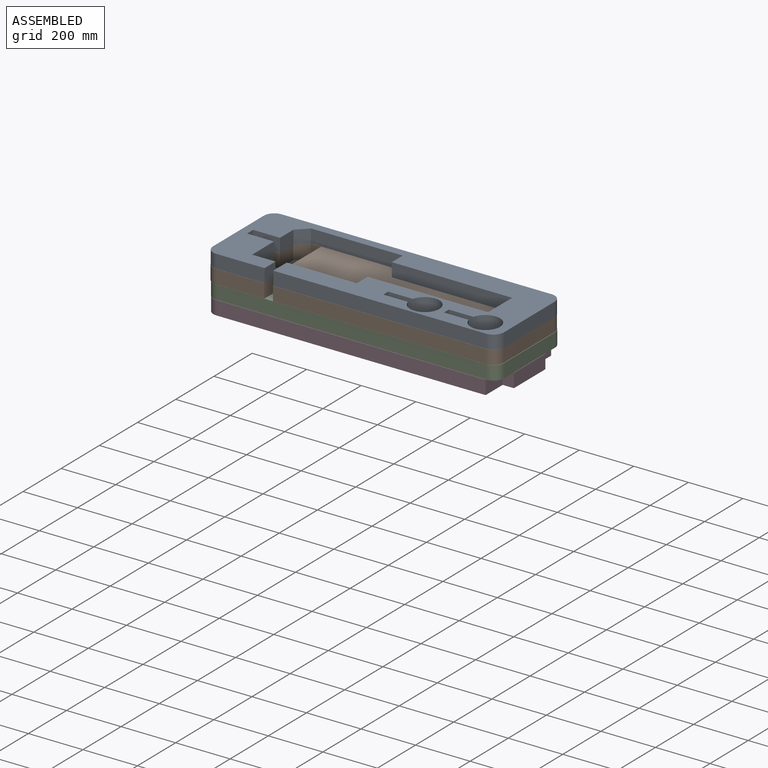
[diagram: assembled view]
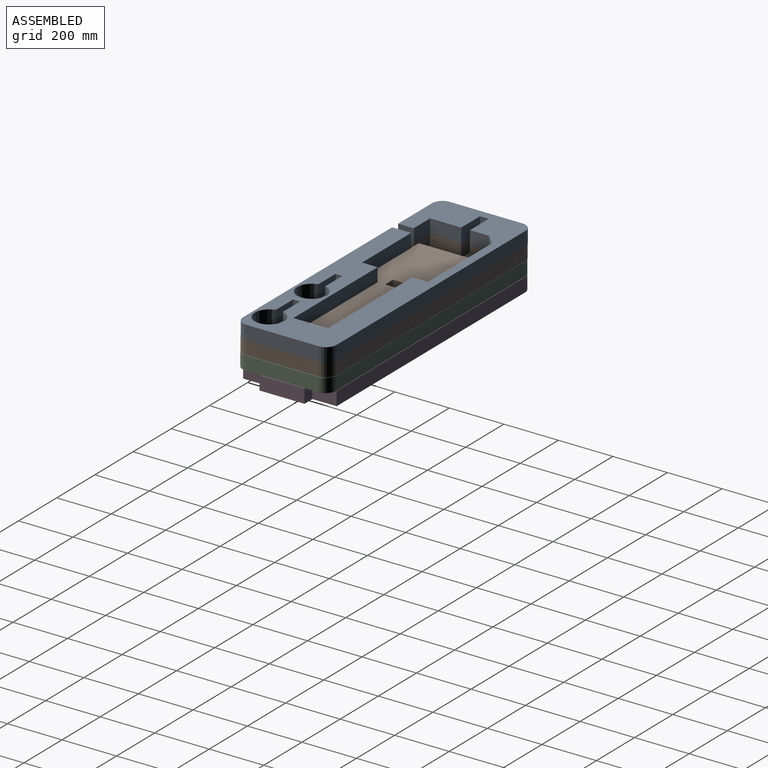
[diagram: assembled view, second angle]
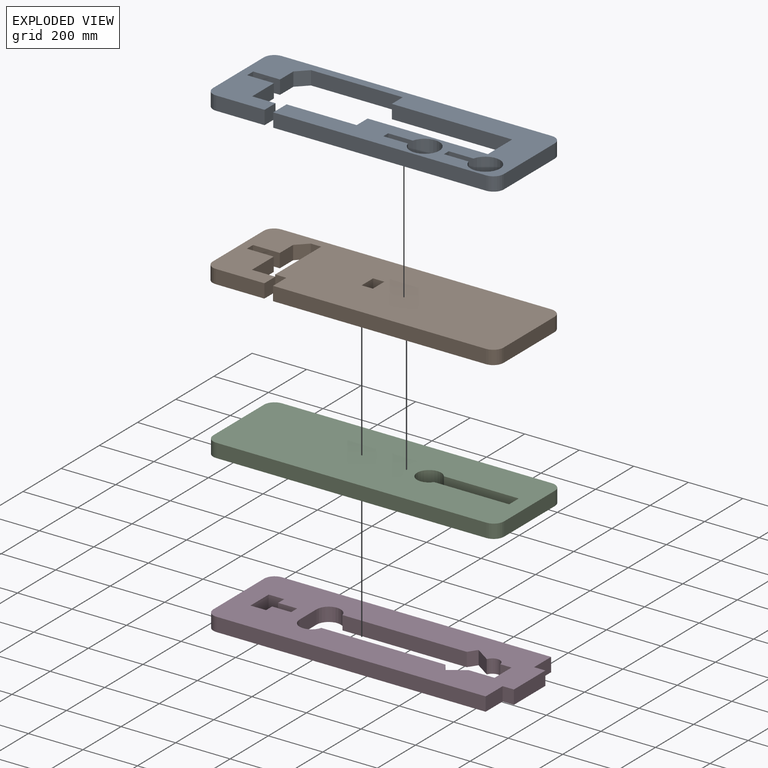
[diagram: exploded view]
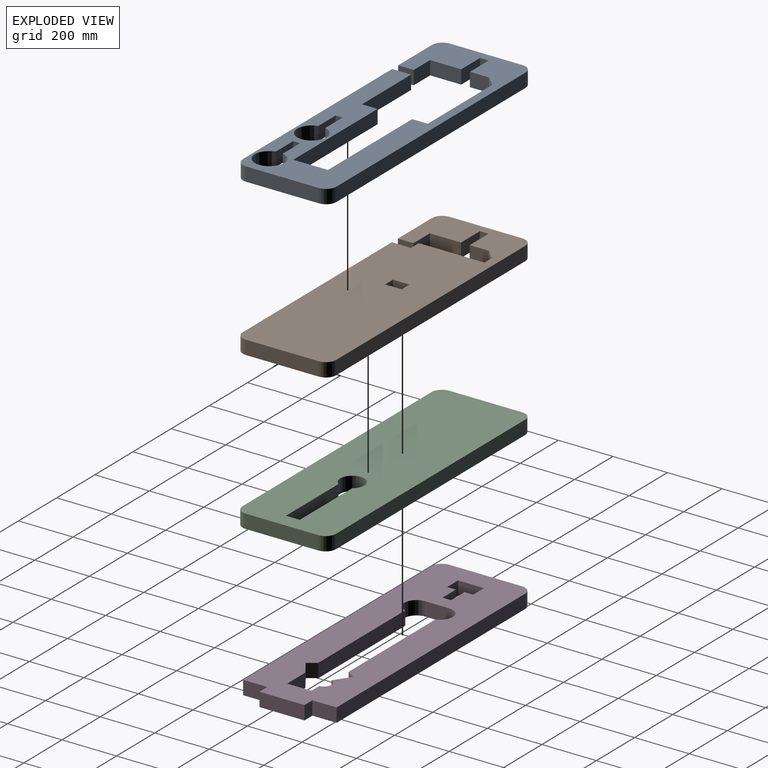
[diagram: exploded view, second angle]
ASSEMBLY  parts=4 mates=3
PART A: 35 faces, bbox 1066.8x342.9x50.8 mm
  f0: plane 177.8x50.8mm, normal (0,-1,0), area 9032.2mm2, adj f1,f6,f22,f25
  f1: plane 1066.8x342.9mm, normal (0,0,-1), area 189557.4mm2, adj f0,f2,f3,f4,f5,f7,f8,f9
  f2: plane 266.7x50.8mm, normal (1,0,0), area 13548.4mm2, adj f1,f6,f23,f26
  f3: plane 990.6x50.8mm, normal (0,1,0), area 50322.5mm2, adj f1,f6,f23,f24
  f4: plane 266.7x50.8mm, normal (-1,0,0), area 13548.4mm2, adj f1,f6,f24,f25
  f5: plane 781.05x50.8mm, normal (0,-1,0), area 39677.3mm2, adj f1,f6,f7,f26
  f6: plane 1066.8x342.9mm, normal (0,0,1), area 189557.4mm2, adj f0,f2,f3,f4,f5,f7,f8,f9
  f7: plane 69.85x50.8mm, normal (-1,0,0), area 3548.4mm2, adj f1,f5,f6,f8
  f8: plane 257.18x50.8mm, normal (0,1,0), area 13064.5mm2, adj f1,f6,f7,f9
  f9: plane 57.15x50.8mm, normal (-1,0,0), area 2903.2mm2, adj f1,f6,f8,f10
  f10: plane 441.33x50.8mm, normal (0,1,0), area 22419.3mm2, adj f1,f6,f9,f11
  f11: plane 127x50.8mm, normal (-1,0,0), area 6451.6mm2, adj f1,f6,f10,f12
  f12: plane 441.33x50.8mm, normal (0,-1,0), area 22419.3mm2, adj f1,f6,f11,f13
  f13: plane 57.15x50.8mm, normal (-1,0,0), area 2903.2mm2, adj f1,f6,f12,f14
  f14: plane 336.55x50.8mm, normal (0,-1,0), area 17096.7mm2, adj f1,f6,f13,f15
  f15: plane 50.8x38.16mm, normal (0.71,-0.71,0), area 2739.4mm2, adj f1,f6,f14,f16
  f16: plane 69.79x50.8mm, normal (1,0,0), area 3545.2mm2, adj f1,f6,f15,f17
  f17: plane 98.43x50.8mm, normal (0,-1,0), area 5000mm2, adj f1,f6,f16,f18
  f18: plane 50.8x31.75mm, normal (1,0,0), area 1612.9mm2, adj f1,f6,f17,f19
  f19: plane 98.43x50.8mm, normal (0,1,0), area 5000mm2, adj f1,f6,f18,f20
  f20: plane 114.3x50.8mm, normal (1,0,0), area 5806.4mm2, adj f1,f6,f19,f21
  f21: plane 85.73x50.8mm, normal (0,1,0), area 4354.8mm2, adj f1,f6,f20,f22
  f22: plane 57.15x50.8mm, normal (1,0,0), area 2903.2mm2, adj f0,f1,f6,f21
  f23: cylinder r=38.1mm len=50.8mm, axis (0,0,-1), area 3040.2mm2, adj f1,f2,f3,f6
  f24: cylinder r=38.1mm len=50.8mm, axis (0,0,1), area 3040.2mm2, adj f1,f3,f4,f6
  f25: cylinder r=38.1mm len=50.8mm, axis (0,0,-1), area 3040.2mm2, adj f0,f1,f4,f6
  f26: cylinder r=38.1mm len=50.8mm, axis (0,0,1), area 3040.2mm2, adj f1,f2,f5,f6
  f27: plane 90.42x50.8mm, normal (0,1,0), area 4593.1mm2, adj f1,f6,f28,f30
  f28: cylinder r=53.98mm len=107.95mm, axis (0,0,1), area 15925.5mm2, adj f1,f6,f27,f29
  f29: plane 90.42x50.8mm, normal (0,-1,0), area 4593.1mm2, adj f1,f6,f28,f30
  f30: plane 50.8x25.4mm, normal (1,0,0), area 1290.3mm2, adj f1,f6,f27,f29
  f31: plane 90.42x50.8mm, normal (0,1,0), area 4593.1mm2, adj f1,f6,f32,f34
  f32: cylinder r=53.98mm len=107.95mm, axis (0,0,1), area 15925.5mm2, adj f1,f6,f31,f33
  f33: plane 90.42x50.8mm, normal (0,-1,0), area 4593.1mm2, adj f1,f6,f32,f34
  f34: plane 50.8x25.4mm, normal (1,0,0), area 1290.3mm2, adj f1,f6,f31,f33
PART B: 27 faces, bbox 1066.8x342.9x50.8 mm
  f0: plane 177.8x50.8mm, normal (0,-1,0), area 9032.2mm2, adj f1,f6,f22,f25
  f1: plane 1066.8x342.9mm, normal (0,0,-1), area 337978.2mm2, adj f0,f2,f3,f4,f5,f7,f8,f9
  f2: plane 266.7x50.8mm, normal (1,0,0), area 13548.4mm2, adj f1,f6,f23,f26
  f3: plane 990.6x50.8mm, normal (0,1,0), area 50322.5mm2, adj f1,f6,f23,f24
  f4: plane 266.7x50.8mm, normal (-1,0,0), area 13548.4mm2, adj f1,f6,f24,f25
  f5: plane 781.05x50.8mm, normal (0,-1,0), area 39677.3mm2, adj f1,f6,f11,f26
  f6: plane 1066.8x342.9mm, normal (0,0,1), area 337978.2mm2, adj f0,f2,f3,f4,f5,f7,f8,f9
  f7: plane 60.33x50.8mm, normal (-1,0,0), area 3064.5mm2, adj f1,f6,f8,f10
  f8: plane 50.8x41.28mm, normal (0,-1,0), area 2096.8mm2, adj f1,f6,f7,f9
  f9: plane 60.33x50.8mm, normal (1,0,0), area 3064.5mm2, adj f1,f6,f8,f10
  f10: plane 50.8x41.28mm, normal (0,1,0), area 2096.8mm2, adj f1,f6,f7,f9
  f11: plane 69.85x50.8mm, normal (-1,0,0), area 3548.4mm2, adj f1,f5,f6,f12
  f12: plane 50.8x41.28mm, normal (0,-1,0), area 2096.8mm2, adj f1,f6,f11,f13
  f13: plane 241.3x50.8mm, normal (-1,0,0), area 12258mm2, adj f1,f6,f12,f14
  f14: plane 50.8x38.1mm, normal (0,-1,0), area 1935.5mm2, adj f1,f6,f13,f15
  f15: plane 50.8x38.16mm, normal (0.71,-0.71,0), area 2739.4mm2, adj f1,f6,f14,f16
  f16: plane 69.79x50.8mm, normal (1,0,0), area 3545.2mm2, adj f1,f6,f15,f17
  f17: plane 98.43x50.8mm, normal (0,-1,0), area 5000mm2, adj f1,f6,f16,f18
  f18: plane 50.8x31.75mm, normal (1,0,0), area 1612.9mm2, adj f1,f6,f17,f19
  f19: plane 98.43x50.8mm, normal (0,1,0), area 5000mm2, adj f1,f6,f18,f20
  f20: plane 114.3x50.8mm, normal (1,0,0), area 5806.4mm2, adj f1,f6,f19,f21
  f21: plane 85.73x50.8mm, normal (0,1,0), area 4354.8mm2, adj f1,f6,f20,f22
  f22: plane 57.15x50.8mm, normal (1,0,0), area 2903.2mm2, adj f0,f1,f6,f21
  f23: cylinder r=38.1mm len=50.8mm, axis (0,0,-1), area 3040.2mm2, adj f1,f2,f3,f6
  f24: cylinder r=38.1mm len=50.8mm, axis (0,0,1), area 3040.2mm2, adj f1,f3,f4,f6
  f25: cylinder r=38.1mm len=50.8mm, axis (0,0,-1), area 3040.2mm2, adj f0,f1,f4,f6
  f26: cylinder r=38.1mm len=50.8mm, axis (0,0,1), area 3040.2mm2, adj f1,f2,f5,f6
PART C: 14 faces, bbox 1066.8x342.9x50.8 mm
  f0: plane 266.7x50.8mm, normal (1,0,0), area 13548.4mm2, adj f4,f5,f6,f9
  f1: plane 990.6x50.8mm, normal (0,1,0), area 50322.5mm2, adj f4,f5,f6,f7
  f2: plane 266.7x50.8mm, normal (-1,0,0), area 13548.4mm2, adj f4,f5,f7,f8
  f3: plane 990.6x50.8mm, normal (0,-1,0), area 50322.5mm2, adj f4,f5,f8,f9
  f4: plane 1066.8x342.9mm, normal (0,0,1), area 344674.4mm2, adj f0,f1,f2,f3,f6,f7,f8,f9
  f5: plane 1066.8x342.9mm, normal (0,0,-1), area 344674.4mm2, adj f0,f1,f2,f3,f6,f7,f8,f9
  f6: cylinder r=38.1mm len=50.8mm, axis (0,0,-1), area 3040.2mm2, adj f0,f1,f4,f5
  f7: cylinder r=38.1mm len=50.8mm, axis (0,0,1), area 3040.2mm2, adj f1,f2,f4,f5
  f8: cylinder r=38.1mm len=50.8mm, axis (0,0,-1), area 3040.2mm2, adj f2,f3,f4,f5
  f9: cylinder r=38.1mm len=50.8mm, axis (0,0,1), area 3040.2mm2, adj f0,f3,f4,f5
  f10: cylinder r=44.45mm len=88.9mm, axis (0,0,1), area 11440.9mm2, adj f4,f5,f11,f13
  f11: plane 274.67x50.8mm, normal (0,1,0), area 13953.3mm2, adj f4,f5,f10,f12
  f12: plane 50.8x50.8mm, normal (-1,0,0), area 2580.6mm2, adj f4,f5,f11,f13
  f13: plane 274.67x50.8mm, normal (0,-1,0), area 13953.3mm2, adj f4,f5,f10,f12
PART D: 33 faces, bbox 1066.8x342.9x50.8 mm
  f0: plane 165.1x50.8mm, normal (1,0,0), area 8387.1mm2, adj f3,f4,f9,f10
  f1: plane 987.43x50.8mm, normal (0,1,0), area 50161.2mm2, adj f3,f4,f6,f8
  f2: plane 987.43x50.8mm, normal (0,-1,0), area 50161.2mm2, adj f3,f4,f7,f11
  f3: plane 1066.8x342.9mm, normal (0,0,1), area 265213.1mm2, adj f0,f1,f2,f5,f6,f7,f8,f9
  f4: plane 1066.8x342.9mm, normal (0,0,-1), area 265213.1mm2, adj f0,f1,f2,f5,f6,f7,f8,f9
  f5: plane 266.7x50.8mm, normal (-1,0,0), area 13548.4mm2, adj f3,f4,f6,f7
  f6: cylinder r=38.1mm len=50.8mm, axis (0,0,1), area 3040.2mm2, adj f1,f3,f4,f5
  f7: cylinder r=38.1mm len=50.8mm, axis (0,0,-1), area 3040.2mm2, adj f2,f3,f4,f5
  f8: plane 88.9x50.8mm, normal (1,0,0), area 4516.1mm2, adj f1,f3,f4,f9
  f9: plane 50.8x41.28mm, normal (0,1,0), area 2096.8mm2, adj f0,f3,f4,f8
  f10: plane 50.8x41.28mm, normal (0,-1,0), area 2096.8mm2, adj f0,f3,f4,f11
  f11: plane 88.9x50.8mm, normal (1,0,0), area 4516.1mm2, adj f2,f3,f4,f10
  f12: cylinder r=44.45mm len=87.49mm, axis (0,0,1), area 6523.4mm2, adj f3,f4,f13,f24
  f13: plane 88.9x50.8mm, normal (1,0,0), area 4516.2mm2, adj f3,f4,f12,f14
  f14: cylinder r=44.45mm len=87.49mm, axis (0,0,1), area 6523.4mm2, adj f3,f4,f13,f15
  f15: plane 455.64x50.8mm, normal (0,1,0), area 23146.7mm2, adj f3,f4,f14,f16
  f16: plane 50.8x31.46mm, normal (0.83,0.56,0), area 1935.5mm2, adj f3,f4,f15,f17
  f17: plane 57.68x50.8mm, normal (-0.56,0.83,0), area 3548.4mm2, adj f3,f4,f16,f18
  f18: plane 95.25x50.8mm, normal (0,1,0), area 4838.7mm2, adj f3,f4,f17,f19
  f19: plane 88.9x50.8mm, normal (-1,0,0), area 4516.1mm2, adj f3,f4,f18,f20
  f20: plane 50.8x41.28mm, normal (0,-1,0), area 2096.8mm2, adj f3,f4,f19,f21
  f21: cylinder r=27.73mm len=53.98mm, axis (0,0,1), area 3858.7mm2, adj f3,f4,f20,f22
  f22: plane 57.68x50.8mm, normal (-0.56,-0.83,0), area 3548.4mm2, adj f3,f4,f21,f23
  f23: plane 50.8x31.46mm, normal (0.83,-0.56,0), area 1935.5mm2, adj f3,f4,f22,f24
  f24: plane 455.64x50.8mm, normal (0,-1,0), area 23146.7mm2, adj f3,f4,f12,f23
  f25: plane 50.8x31.75mm, normal (-1,0,0), area 1612.9mm2, adj f3,f4,f26,f32
  f26: plane 57.15x50.8mm, normal (0,-1,0), area 2903.2mm2, adj f3,f4,f25,f27
  f27: plane 95.25x50.8mm, normal (1,0,0), area 4838.7mm2, adj f3,f4,f26,f28
  f28: plane 57.15x50.8mm, normal (0,1,0), area 2903.2mm2, adj f3,f4,f27,f29
  f29: plane 50.8x31.75mm, normal (-1,0,0), area 1612.9mm2, adj f3,f4,f28,f30
  f30: plane 69.85x50.8mm, normal (0,1,0), area 3548.4mm2, adj f3,f4,f29,f31
  f31: plane 50.8x31.75mm, normal (-1,0,0), area 1612.9mm2, adj f3,f4,f30,f32
  f32: plane 69.85x50.8mm, normal (0,-1,0), area 3548.4mm2, adj f3,f4,f25,f31
PLACE A t=(-35.91,-143.17,-157.36)mm
PLACE B t=(-36.03,-144.11,-207.24)mm
PLACE C t=(-34.54,-143.92,-258.41)mm
PLACE D t=(-34.21,-143.76,-310.37)mm
MATE parallel D.f3 <-> C.f5  axis (0,0,1) through (-491.41,-96.13,-259.57)mm
MATE parallel A.f1 <-> B.f23  axis (0,0,-1) through (-16.39,-142.44,-157.36)mm
MATE parallel C.f4 <-> B.f26  axis (0,0,1) through (-51.07,-143.92,-207.61)mm
